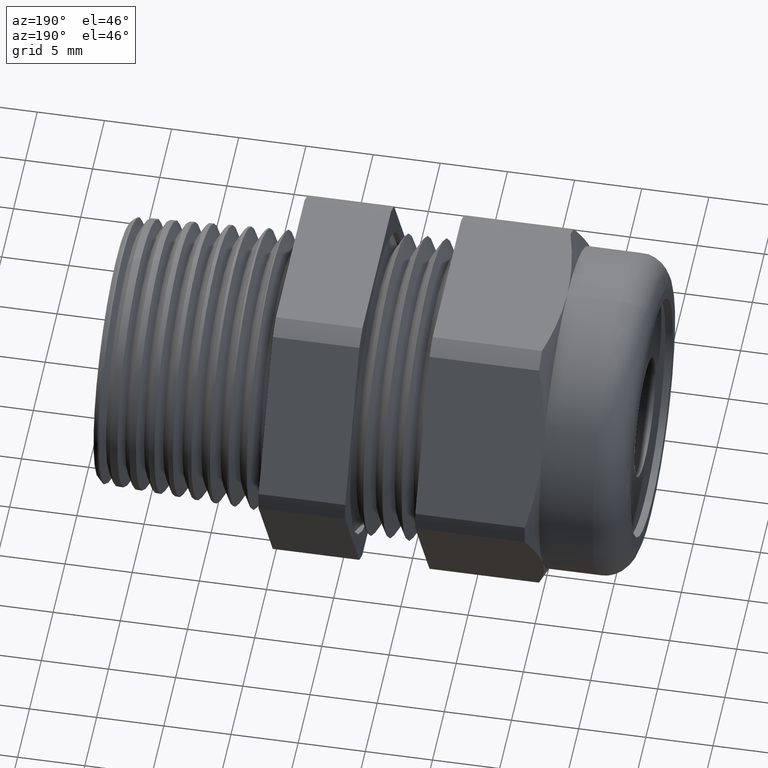
[diagram: clean part render]
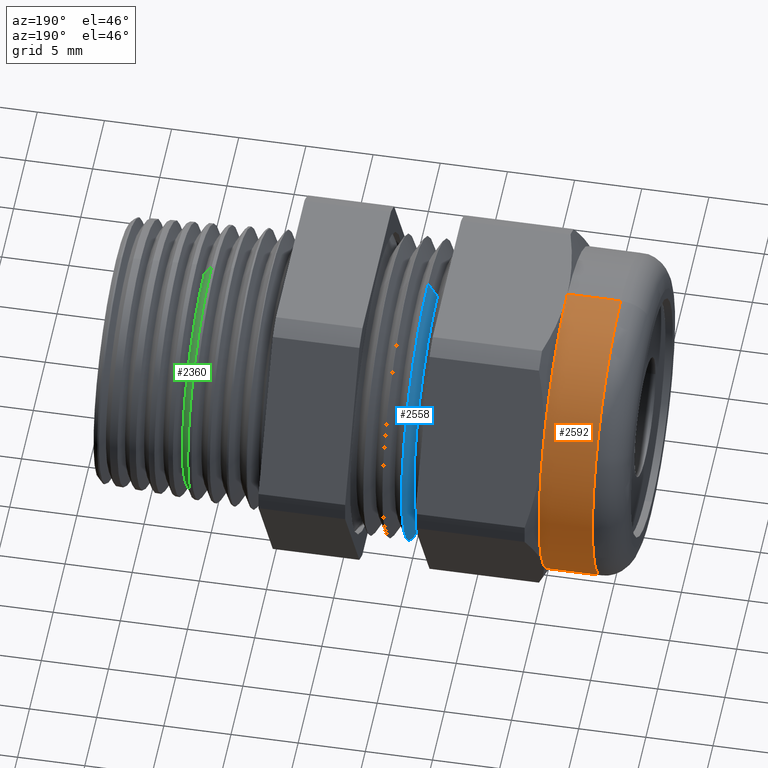
[diagram: same view with three faces highlighted in distinct colors, each labeled with its STEP entity id]
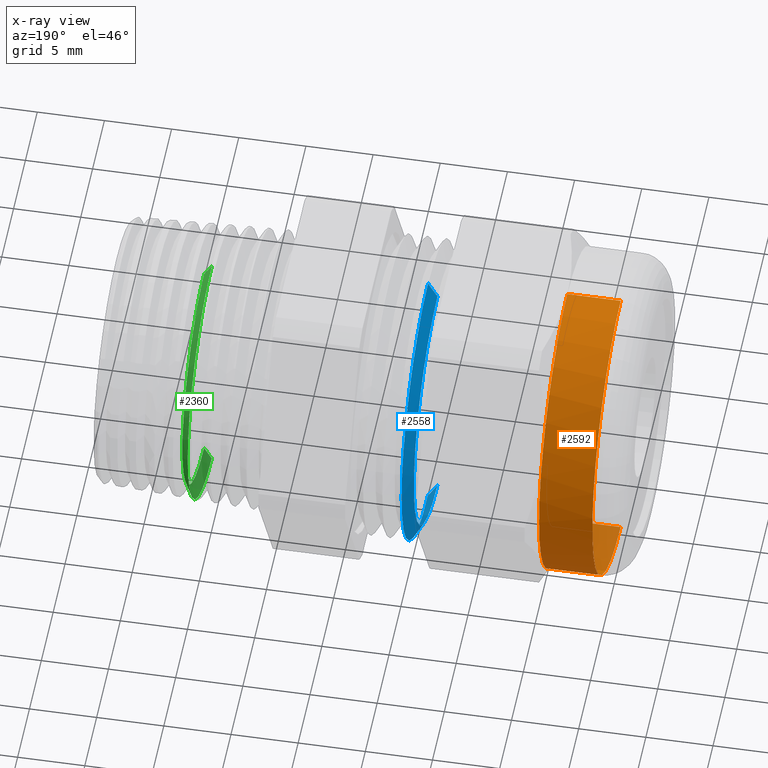
[diagram: x-ray of the same camera — body ghosted, the three highlighted faces saturated]
A machine part, auxiliary view with three faces highlighted in distinct colors.
The next image is the same camera in x-ray (body ghosted, the three faces saturated) — at least one of them is partly hidden behind the body in this view.
Their STEP definitions:

[orange] entity #2592 — the highlighted cylindrical surface (partial cylindrical patch) has radius 11.938 mm, axis along (-1, 0, 0).
#770 = DIRECTION ( 'NONE',  ( 0.0000000000000000000, 0.0000000000000000000, 1.000000000000000000 ) ) ;
#771 = DIRECTION ( 'NONE',  ( -1.000000000000000000, 0.0000000000000000000, 0.0000000000000000000 ) ) ;
#772 = CARTESIAN_POINT ( 'NONE',  ( -0.8125000000000000000, 0.0000000000000000000, 0.0000000000000000000 ) ) ;
#773 = AXIS2_PLACEMENT_3D ( 'NONE', #772, #771, #770 ) ;
#774 = CIRCLE ( 'NONE', #773, 0.4699999999999997500 ) ;
#775 = CARTESIAN_POINT ( 'NONE',  ( -0.8125000000000000000, 0.4070319397786858500, -0.2349999999999998800 ) ) ;
#849 = DIRECTION ( 'NONE',  ( 0.0000000000000000000, 0.0000000000000000000, 1.000000000000000000 ) ) ;
#850 = DIRECTION ( 'NONE',  ( -1.000000000000000000, 0.0000000000000000000, 0.0000000000000000000 ) ) ;
#851 = CARTESIAN_POINT ( 'NONE',  ( -0.8125000000000000000, 0.0000000000000000000, 0.0000000000000000000 ) ) ;
#852 = AXIS2_PLACEMENT_3D ( 'NONE', #851, #850, #849 ) ;
#853 = CIRCLE ( 'NONE', #852, 0.4699999999999997500 ) ;
#854 = DIRECTION ( 'NONE',  ( 0.0000000000000000000, 0.0000000000000000000, 1.000000000000000000 ) ) ;
#855 = DIRECTION ( 'NONE',  ( -1.000000000000000000, 0.0000000000000000000, 0.0000000000000000000 ) ) ;
#856 = AXIS2_PLACEMENT_3D ( 'NONE', #863, #855, #854 ) ;
#857 = CIRCLE ( 'NONE', #856, 0.4699999999999997500 ) ;
#863 = CARTESIAN_POINT ( 'NONE',  ( -0.8125000000000000000, 0.0000000000000000000, 0.0000000000000000000 ) ) ;
#888 = CARTESIAN_POINT ( 'NONE',  ( -0.8125000000000000000, 0.4070319397786859000, 0.2349999999999999900 ) ) ;
#918 = DIRECTION ( 'NONE',  ( -1.000000000000000000, 0.0000000000000000000, 0.0000000000000000000 ) ) ;
#919 = VECTOR ( 'NONE', #918, 39.37007874015748100 ) ;
#920 = CARTESIAN_POINT ( 'NONE',  ( -0.7238591030180623300, 0.0000000000000000000, 0.4699999999999997500 ) ) ;
#925 = LINE ( 'NONE', #920, #919 ) ;
#933 = CARTESIAN_POINT ( 'NONE',  ( -0.8125000000000000000, 0.0000000000000000000, 0.4699999999999997000 ) ) ;
#935 = CARTESIAN_POINT ( 'NONE',  ( -0.8125000000000000000, 0.0000000000000000000, -0.4699999999999997000 ) ) ;
#937 = DIRECTION ( 'NONE',  ( -1.000000000000000000, 0.0000000000000000000, 0.0000000000000000000 ) ) ;
#938 = VECTOR ( 'NONE', #937, 39.37007874015748100 ) ;
#939 = CARTESIAN_POINT ( 'NONE',  ( -0.7238591030180623300, 5.755839955992557200E-017, -0.4699999999999997500 ) ) ;
#940 = LINE ( 'NONE', #939, #938 ) ;
#962 = DIRECTION ( 'NONE',  ( 0.0000000000000000000, 0.0000000000000000000, 1.000000000000000000 ) ) ;
#963 = DIRECTION ( 'NONE',  ( -1.000000000000000000, 0.0000000000000000000, 0.0000000000000000000 ) ) ;
#964 = AXIS2_PLACEMENT_3D ( 'NONE', #971, #963, #962 ) ;
#966 = CYLINDRICAL_SURFACE ( 'NONE', #964, 0.4699999999999997500 ) ;
#967 = FACE_OUTER_BOUND ( 'NONE', #2588, .T. ) ;
#971 = CARTESIAN_POINT ( 'NONE',  ( -0.7238591030180623300, 0.0000000000000000000, 0.0000000000000000000 ) ) ;
#1701 = CARTESIAN_POINT ( 'NONE',  ( -0.9686000000000000200, 0.0000000000000000000, 0.4699999999999997500 ) ) ;
#1702 = CARTESIAN_POINT ( 'NONE',  ( -0.9686000000000000200, 5.755839955992557200E-017, -0.4699999999999997500 ) ) ;
#1744 = DIRECTION ( 'NONE',  ( 0.0000000000000000000, 0.0000000000000000000, -1.000000000000000000 ) ) ;
#1745 = DIRECTION ( 'NONE',  ( 1.000000000000000000, 0.0000000000000000000, 0.0000000000000000000 ) ) ;
#1746 = CARTESIAN_POINT ( 'NONE',  ( -0.9686000000000000200, 0.0000000000000000000, 0.0000000000000000000 ) ) ;
#1747 = AXIS2_PLACEMENT_3D ( 'NONE', #1746, #1745, #1744 ) ;
#1748 = CIRCLE ( 'NONE', #1747, 0.4699999999999997500 ) ;
#2481 = VERTEX_POINT ( 'NONE', #775 ) ;
#2482 = ORIENTED_EDGE ( 'NONE', *, *, #2483, .T. ) ;
#2483 = EDGE_CURVE ( 'NONE', #2481, #2574, #774, .T. ) ;
#2486 = ORIENTED_EDGE ( 'NONE', *, *, #3771, .T. ) ;
#2545 = EDGE_CURVE ( 'NONE', #2566, #2481, #857, .T. ) ;
#2548 = ORIENTED_EDGE ( 'NONE', *, *, #2545, .T. ) ;
#2549 = EDGE_CURVE ( 'NONE', #2576, #2566, #853, .T. ) ;
#2550 = ORIENTED_EDGE ( 'NONE', *, *, #2549, .T. ) ;
#2566 = VERTEX_POINT ( 'NONE', #888 ) ;
#2571 = ORIENTED_EDGE ( 'NONE', *, *, #2572, .T. ) ;
#2572 = EDGE_CURVE ( 'NONE', #2574, #3761, #940, .T. ) ;
#2574 = VERTEX_POINT ( 'NONE', #935 ) ;
#2576 = VERTEX_POINT ( 'NONE', #933 ) ;
#2581 = EDGE_CURVE ( 'NONE', #2576, #3762, #925, .T. ) ;
#2582 = ORIENTED_EDGE ( 'NONE', *, *, #2581, .F. ) ;
#2588 = EDGE_LOOP ( 'NONE', ( #2482, #2571, #2486, #2582, #2550, #2548 ) ) ;
#2592 = ADVANCED_FACE ( 'NONE', ( #967 ), #966, .T. ) ;
#3761 = VERTEX_POINT ( 'NONE', #1702 ) ;
#3762 = VERTEX_POINT ( 'NONE', #1701 ) ;
#3771 = EDGE_CURVE ( 'NONE', #3761, #3762, #1748, .T. ) ;

[blue] entity #2558 — the highlighted conical surface has half-angle 60 deg.
#843 = CARTESIAN_POINT ( 'NONE',  ( -0.4041666923104227900, 0.0000000000000000000, 0.4399000000000000100 ) ) ;
#844 = DIRECTION ( 'NONE',  ( 0.0000000000000000000, 0.0000000000000000000, -1.000000000000000000 ) ) ;
#845 = DIRECTION ( 'NONE',  ( 1.000000000000000000, 0.0000000000000000000, 0.0000000000000000000 ) ) ;
#846 = CARTESIAN_POINT ( 'NONE',  ( -0.4041666923104227900, 0.0000000000000000000, 0.0000000000000000000 ) ) ;
#847 = AXIS2_PLACEMENT_3D ( 'NONE', #846, #845, #844 ) ;
#848 = CIRCLE ( 'NONE', #847, 0.4399000000000000100 ) ;
#895 = DIRECTION ( 'NONE',  ( 0.0000000000000000000, 0.0000000000000000000, -1.000000000000000000 ) ) ;
#896 = DIRECTION ( 'NONE',  ( 1.000000000000000000, 0.0000000000000000000, 0.0000000000000000000 ) ) ;
#897 = CARTESIAN_POINT ( 'NONE',  ( -0.4316666794885449800, 0.0000000000000000000, 0.0000000000000000000 ) ) ;
#898 = AXIS2_PLACEMENT_3D ( 'NONE', #897, #896, #895 ) ;
#899 = CONICAL_SURFACE ( 'NONE', #898, 0.3922686249999999800, 1.047197551196595600 ) ;
#900 = FACE_OUTER_BOUND ( 'NONE', #2557, .T. ) ;
#901 = DIRECTION ( 'NONE',  ( 0.5000000000000017800, 1.060575238724905400E-016, 0.8660254037844374900 ) ) ;
#902 = VECTOR ( 'NONE', #901, 39.37007874015748100 ) ;
#903 = CARTESIAN_POINT ( 'NONE',  ( -0.4316666794885449800, 4.803905160121833900E-017, 0.3922686249999999800 ) ) ;
#904 = LINE ( 'NONE', #903, #902 ) ;
#1981 = VERTEX_POINT ( 'NONE', #3275 ) ;
#1983 = VERTEX_POINT ( 'NONE', #3274 ) ;
#1984 = EDGE_CURVE ( 'NONE', #1983, #1981, #3273, .T. ) ;
#1988 = EDGE_CURVE ( 'NONE', #1983, #1992, #3324, .T. ) ;
#1991 = ORIENTED_EDGE ( 'NONE', *, *, #1988, .F. ) ;
#1992 = VERTEX_POINT ( 'NONE', #3316 ) ;
#2551 = ORIENTED_EDGE ( 'NONE', *, *, #2552, .F. ) ;
#2552 = EDGE_CURVE ( 'NONE', #1992, #2553, #848, .T. ) ;
#2553 = VERTEX_POINT ( 'NONE', #843 ) ;
#2554 = EDGE_CURVE ( 'NONE', #1981, #2553, #904, .T. ) ;
#2555 = ORIENTED_EDGE ( 'NONE', *, *, #2554, .T. ) ;
#2556 = ORIENTED_EDGE ( 'NONE', *, *, #1984, .T. ) ;
#2557 = EDGE_LOOP ( 'NONE', ( #2556, #2555, #2551, #1991 ) ) ;
#2558 = ADVANCED_FACE ( 'NONE', ( #900 ), #899, .T. ) ;
#3269 = DIRECTION ( 'NONE',  ( 0.0000000000000000000, 0.0000000000000000000, -1.000000000000000000 ) ) ;
#3270 = DIRECTION ( 'NONE',  ( 1.000000000000000000, 0.0000000000000000000, 0.0000000000000000000 ) ) ;
#3271 = CARTESIAN_POINT ( 'NONE',  ( -0.4316666794885449800, 0.0000000000000000000, 0.0000000000000000000 ) ) ;
#3272 = AXIS2_PLACEMENT_3D ( 'NONE', #3271, #3270, #3269 ) ;
#3273 = CIRCLE ( 'NONE', #3272, 0.3922686249999999800 ) ;
#3274 = CARTESIAN_POINT ( 'NONE',  ( -0.4316666794885449800, 0.0000000000000000000, -0.3922686249999999800 ) ) ;
#3275 = CARTESIAN_POINT ( 'NONE',  ( -0.4316666794885449800, 5.095563214785520700E-017, 0.3922686249999999800 ) ) ;
#3316 = CARTESIAN_POINT ( 'NONE',  ( -0.4041666923104227900, 5.387221269449206900E-017, -0.4399000000000000100 ) ) ;
#3321 = DIRECTION ( 'NONE',  ( 0.5000000000000017800, 0.0000000000000000000, -0.8660254037844374900 ) ) ;
#3322 = VECTOR ( 'NONE', #3321, 39.37007874015748100 ) ;
#3323 = CARTESIAN_POINT ( 'NONE',  ( -0.4316666794885449800, 0.0000000000000000000, -0.3922686249999999800 ) ) ;
#3324 = LINE ( 'NONE', #3323, #3322 ) ;

[green] entity #2360 — the highlighted conical surface has half-angle 60 deg.
#109 = EDGE_CURVE ( 'NONE', #113, #110, #2974, .T. ) ;
#110 = VERTEX_POINT ( 'NONE', #2969 ) ;
#113 = VERTEX_POINT ( 'NONE', #2964 ) ;
#338 = CARTESIAN_POINT ( 'NONE',  ( 0.2297925313437448000, 4.901080510623984000E-017, -0.3999670414081982200 ) ) ;
#339 = DIRECTION ( 'NONE',  ( 0.0000000000000000000, 0.0000000000000000000, 1.000000000000000000 ) ) ;
#340 = DIRECTION ( 'NONE',  ( 1.000000000000000000, 0.0000000000000000000, 0.0000000000000000000 ) ) ;
#341 = CARTESIAN_POINT ( 'NONE',  ( 0.2297925313437448000, 0.0000000000000000000, 0.0000000000000000000 ) ) ;
#342 = AXIS2_PLACEMENT_3D ( 'NONE', #341, #340, #339 ) ;
#343 = CIRCLE ( 'NONE', #342, 0.3999670414081982200 ) ;
#344 = DIRECTION ( 'NONE',  ( -0.4999999999999951200, 1.060575238724910200E-016, -0.8660254037844414800 ) ) ;
#345 = VECTOR ( 'NONE', #344, 39.37007874015748100 ) ;
#346 = CARTESIAN_POINT ( 'NONE',  ( 0.2239999999999997500, 5.021051876504148100E-017, -0.4099999999999999800 ) ) ;
#347 = LINE ( 'NONE', #346, #345 ) ;
#348 = DIRECTION ( 'NONE',  ( -0.4999999999999951200, 0.0000000000000000000, 0.8660254037844414800 ) ) ;
#349 = VECTOR ( 'NONE', #348, 39.37007874015748100 ) ;
#350 = CARTESIAN_POINT ( 'NONE',  ( 0.2239999999999997500, 0.0000000000000000000, 0.4099999999999999800 ) ) ;
#354 = LINE ( 'NONE', #350, #349 ) ;
#469 = DIRECTION ( 'NONE',  ( 0.0000000000000000000, 0.0000000000000000000, 1.000000000000000000 ) ) ;
#470 = DIRECTION ( 'NONE',  ( -1.000000000000000000, 0.0000000000000000000, 0.0000000000000000000 ) ) ;
#471 = CARTESIAN_POINT ( 'NONE',  ( 0.2239999999999997500, 0.0000000000000000000, 0.0000000000000000000 ) ) ;
#472 = AXIS2_PLACEMENT_3D ( 'NONE', #471, #470, #469 ) ;
#474 = CONICAL_SURFACE ( 'NONE', #472, 0.4099999999999999800, 1.047197551196603400 ) ;
#475 = FACE_OUTER_BOUND ( 'NONE', #2335, .T. ) ;
#2176 = VERTEX_POINT ( 'NONE', #3524 ) ;
#2177 = ORIENTED_EDGE ( 'NONE', *, *, #2283, .F. ) ;
#2283 = EDGE_CURVE ( 'NONE', #113, #2176, #354, .T. ) ;
#2288 = ORIENTED_EDGE ( 'NONE', *, *, #2290, .T. ) ;
#2289 = EDGE_CURVE ( 'NONE', #110, #2291, #347, .T. ) ;
#2290 = EDGE_CURVE ( 'NONE', #2291, #2176, #343, .T. ) ;
#2291 = VERTEX_POINT ( 'NONE', #338 ) ;
#2335 = EDGE_LOOP ( 'NONE', ( #2336, #2341, #2288, #2177 ) ) ;
#2336 = ORIENTED_EDGE ( 'NONE', *, *, #109, .T. ) ;
#2341 = ORIENTED_EDGE ( 'NONE', *, *, #2289, .T. ) ;
#2360 = ADVANCED_FACE ( 'NONE', ( #475 ), #474, .T. ) ;
#2964 = CARTESIAN_POINT ( 'NONE',  ( 0.2522379998258640300, 0.0000000000000000000, 0.3610903495974813200 ) ) ;
#2969 = CARTESIAN_POINT ( 'NONE',  ( 0.2522379998258640300, 4.660132489312705700E-017, -0.3610903495974813200 ) ) ;
#2970 = DIRECTION ( 'NONE',  ( 0.0000000000000000000, 0.0000000000000000000, 1.000000000000000000 ) ) ;
#2971 = DIRECTION ( 'NONE',  ( -1.000000000000000000, 0.0000000000000000000, 0.0000000000000000000 ) ) ;
#2972 = CARTESIAN_POINT ( 'NONE',  ( 0.2522379998258640300, 0.0000000000000000000, 0.0000000000000000000 ) ) ;
#2973 = AXIS2_PLACEMENT_3D ( 'NONE', #2972, #2971, #2970 ) ;
#2974 = CIRCLE ( 'NONE', #2973, 0.3610903495974813200 ) ;
#3524 = CARTESIAN_POINT ( 'NONE',  ( 0.2297925313437448000, 0.0000000000000000000, 0.3999670414081982200 ) ) ;